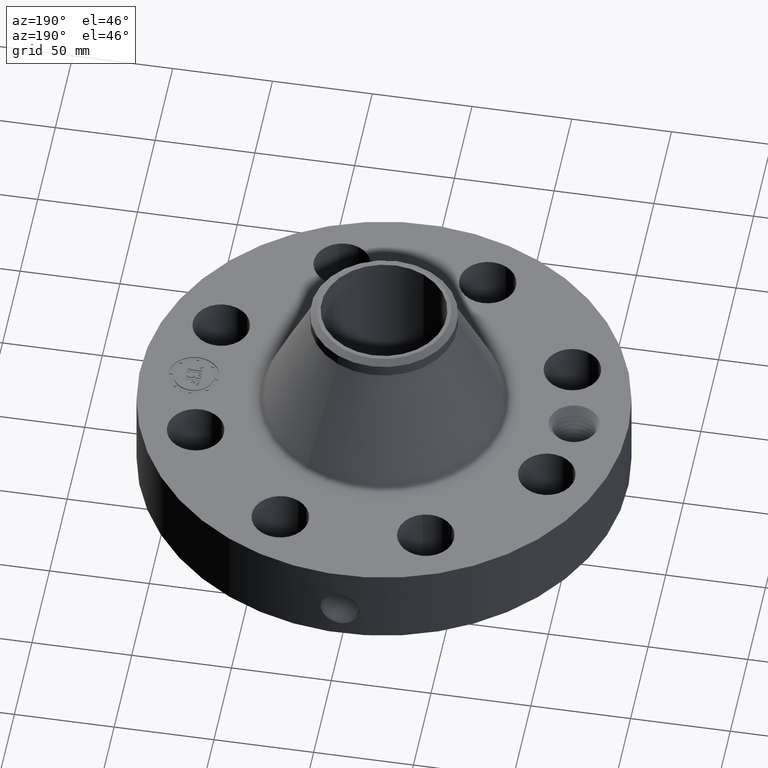
[diagram: clean part render]
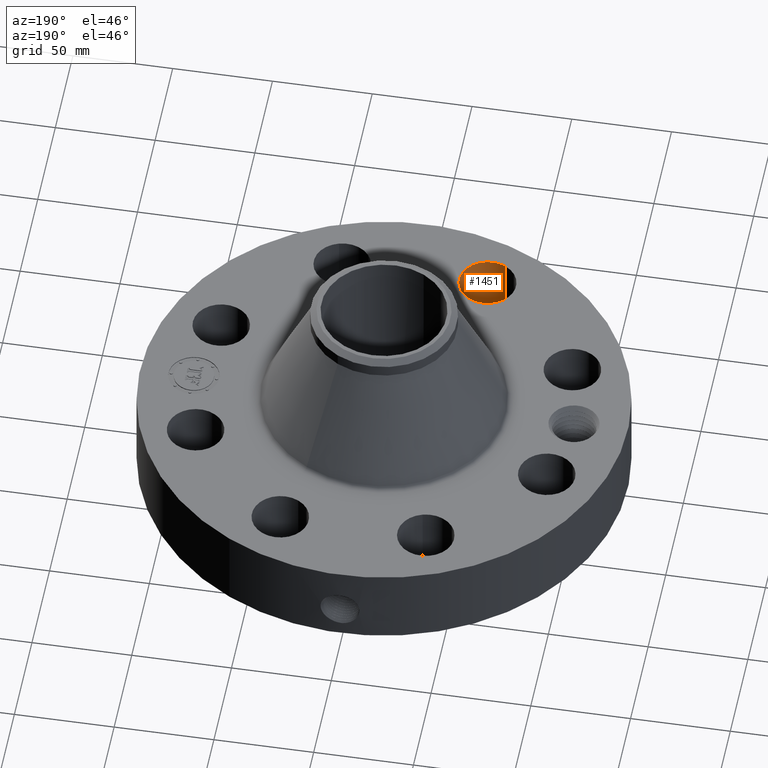
[diagram: same view with one face highlighted and labeled with its STEP entity id]
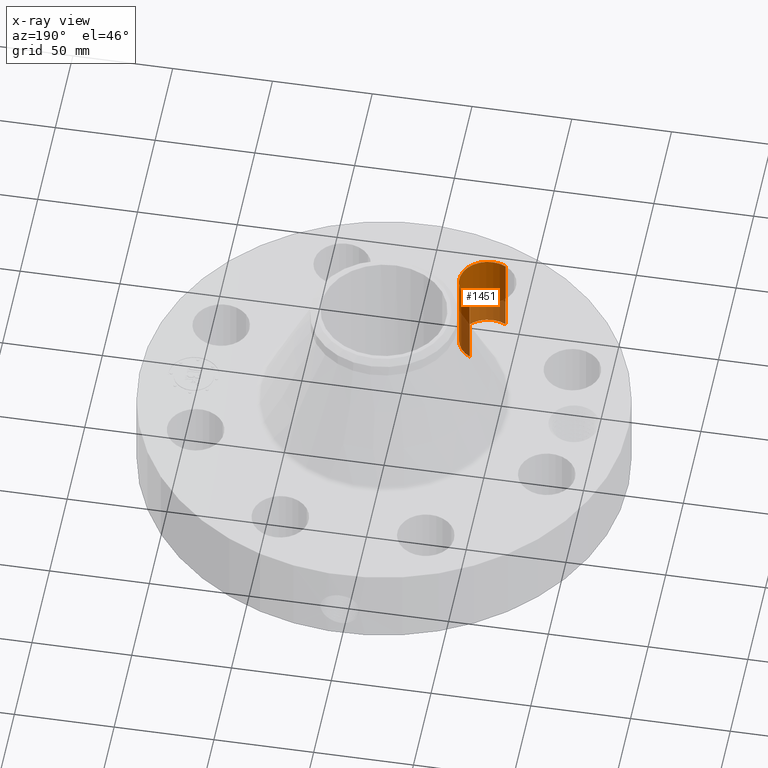
[diagram: x-ray of the same camera — body ghosted, the highlighted face saturated]
A machine part, auxiliary view. The second image highlights one B-rep face of the part: STEP entity #1451.
The next image is the same camera in x-ray: the body ghosted, the highlighted face saturated — about 36% of this face is hidden behind the body in this view.
In plain terms, the highlighted cylindrical surface (edge-blend (fillet) strip) has radius 14.224 mm, axis along (0, -0, -1).
Its self-contained STEP definition (entity closure, byte-faithful):
#295=AXIS2_PLACEMENT_3D('Circle Axis2P3D',#293,#294,$) ;
#638=AXIS2_PLACEMENT_3D('Circle Axis2P3D',#636,#637,$) ;
#1433=AXIS2_PLACEMENT_3D('Cylinder Axis2P3D',#1430,#1431,#1432) ;
#293=CARTESIAN_POINT('Axis2P3D Location',(-1.43506287137,-3.46454824693,0.250000000001)) ;
#297=CARTESIAN_POINT('Vertex',(-1.16658456976,-2.97310201227,0.250000000001)) ;
#299=CARTESIAN_POINT('Vertex',(-1.70354117299,-3.95599448159,0.250000000001)) ;
#631=CARTESIAN_POINT('Vertex',(-1.70354117299,-3.95599448159,1.87000000001)) ;
#633=CARTESIAN_POINT('Vertex',(-1.16658456976,-2.97310201227,1.87000000001)) ;
#636=CARTESIAN_POINT('Axis2P3D Location',(-1.43506287137,-3.46454824693,1.87000000001)) ;
#1430=CARTESIAN_POINT('Axis2P3D Location',(-1.43506287137,-3.46454824693,1.86606299213)) ;
#1435=CARTESIAN_POINT('Line Origine',(-1.16658456976,-2.97310201227,1.06)) ;
#1440=CARTESIAN_POINT('Line Origine',(-1.70354117299,-3.95599448159,1.06)) ;
#294=DIRECTION('Axis2P3D Direction',(0.,0.,-0.0393700787402)) ;
#637=DIRECTION('Axis2P3D Direction',(0.,0.,-0.0393700787402)) ;
#1431=DIRECTION('Axis2P3D Direction',(0.,-0.,-0.0393700787402)) ;
#1432=DIRECTION('Axis2P3D XDirection',(-0.0188750212049,-0.0345504945626,0.)) ;
#1436=DIRECTION('Vector Direction',(0.,0.,-0.0393700787402)) ;
#1441=DIRECTION('Vector Direction',(0.,0.,-0.0393700787402)) ;
#1437=VECTOR('Line Direction',#1436,0.0393700787402) ;
#1442=VECTOR('Line Direction',#1441,0.0393700787402) ;
#1446=ORIENTED_EDGE('',*,*,#1439,.F.) ;
#1447=ORIENTED_EDGE('',*,*,#301,.T.) ;
#1448=ORIENTED_EDGE('',*,*,#1444,.T.) ;
#1449=ORIENTED_EDGE('',*,*,#640,.F.) ;
#1451=ADVANCED_FACE('PartBody',(#1450),#1434,.F.) ;
#296=CIRCLE('generated circle',#295,0.560000000002) ;
#639=CIRCLE('generated circle',#638,0.560000000002) ;
#1434=CYLINDRICAL_SURFACE('generated cylinder',#1433,0.560000000002) ;
#301=EDGE_CURVE('',#298,#300,#296,.T.) ;
#640=EDGE_CURVE('',#634,#632,#639,.T.) ;
#1439=EDGE_CURVE('',#298,#634,#1438,.F.) ;
#1444=EDGE_CURVE('',#300,#632,#1443,.F.) ;
#1445=EDGE_LOOP('',(#1446,#1447,#1448,#1449)) ;
#1450=FACE_OUTER_BOUND('',#1445,.T.) ;
#1438=LINE('Line',#1435,#1437) ;
#1443=LINE('Line',#1440,#1442) ;
#298=VERTEX_POINT('',#297) ;
#300=VERTEX_POINT('',#299) ;
#632=VERTEX_POINT('',#631) ;
#634=VERTEX_POINT('',#633) ;